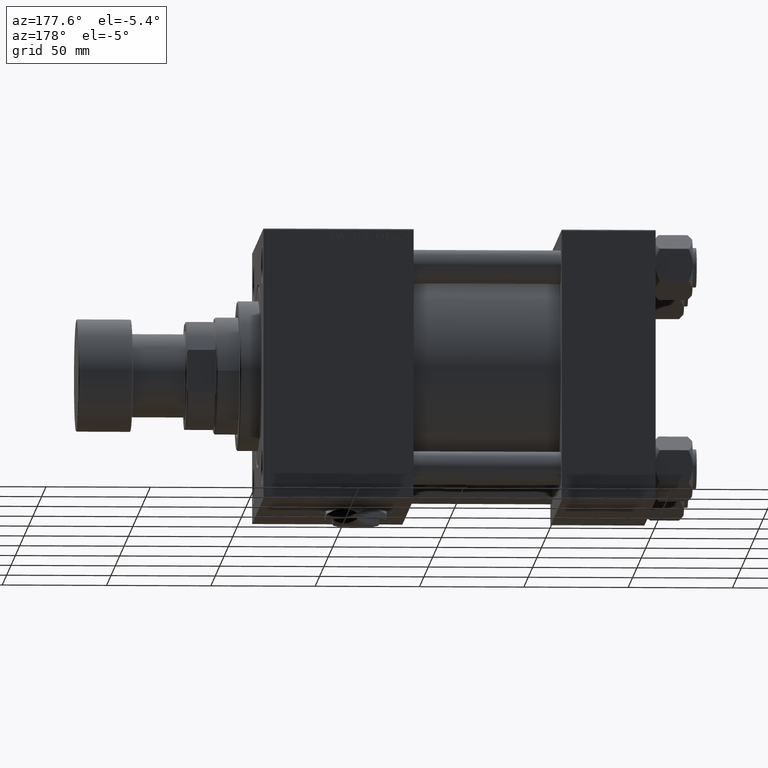
[diagram: clean part render]
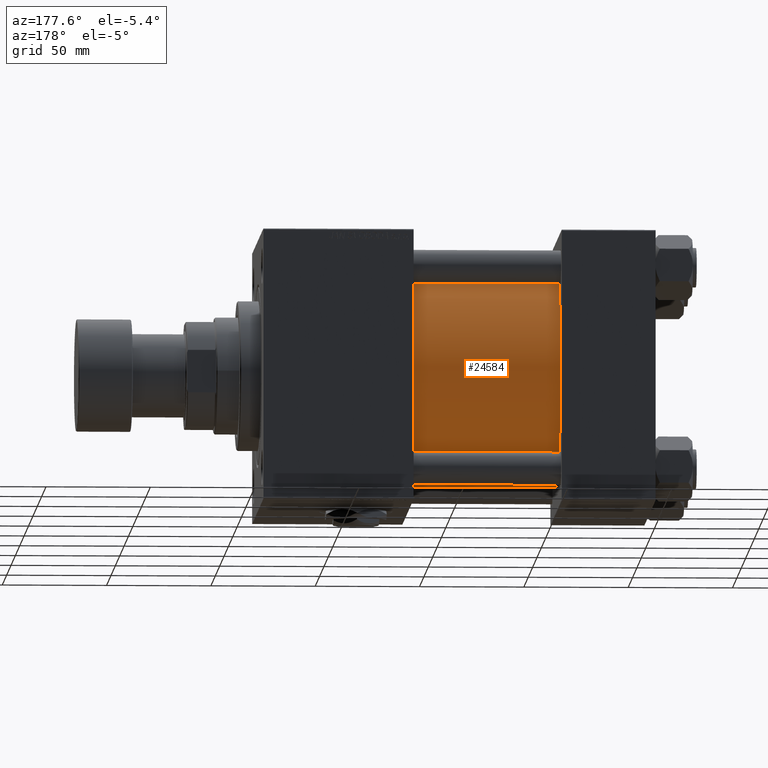
[diagram: same view with one face highlighted and labeled with its STEP entity id]
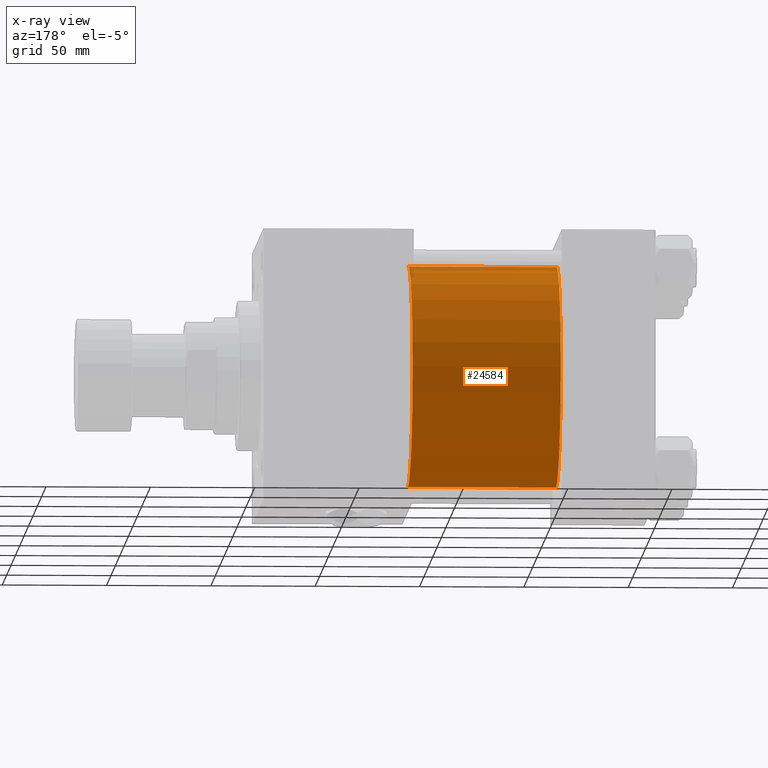
[diagram: x-ray of the same camera — body ghosted, the highlighted face saturated]
A machine part, auxiliary view. The second image highlights one B-rep face of the part: STEP entity #24584.
The next image is the same camera in x-ray: the body ghosted, the highlighted face saturated — about 5% of this face is hidden behind the body in this view.
In plain terms, the highlighted cylindrical surface (partial cylindrical patch) has radius 53 mm, axis along (-1, -0, -0).
Its self-contained STEP definition (entity closure, byte-faithful):
#931 = CARTESIAN_POINT ( 'NONE',  ( 45.00000000000000000, -2.602085213965210642E-15, 0.000000000000000000 ) ) ;
#1716 = LINE ( 'NONE', #47331, #47533 ) ;
#4227 = DIRECTION ( 'NONE',  ( -1.000000000000000000, -0.000000000000000000, -0.000000000000000000 ) ) ;
#5810 = CARTESIAN_POINT ( 'NONE',  ( 115.9999999999999858, -2.602085213965210642E-15, 53.00000000000000711 ) ) ;
#7039 = CARTESIAN_POINT ( 'NONE',  ( 115.9999999999999858, 3.888542821515762466E-15, -53.00000000000000711 ) ) ;
#7127 = CIRCLE ( 'NONE', #19128, 53.00000000000000711 ) ;
#8948 = CARTESIAN_POINT ( 'NONE',  ( 45.00000000000000000, -2.602085213965210642E-15, 53.00000000000000711 ) ) ;
#10213 = EDGE_CURVE ( 'NONE', #38243, #39814, #1716, .T. ) ;
#11171 = ORIENTED_EDGE ( 'NONE', *, *, #32789, .F. ) ;
#11657 = CYLINDRICAL_SURFACE ( 'NONE', #27392, 53.00000000000000711 ) ;
#17170 = EDGE_LOOP ( 'NONE', ( #11171, #33419, #18361, #51440 ) ) ;
#18361 = ORIENTED_EDGE ( 'NONE', *, *, #34617, .T. ) ;
#19128 = AXIS2_PLACEMENT_3D ( 'NONE', #33093, #41901, #21001 ) ;
#20906 = CIRCLE ( 'NONE', #41427, 53.00000000000000711 ) ;
#21001 = DIRECTION ( 'NONE',  ( 0.000000000000000000, 0.000000000000000000, -1.000000000000000000 ) ) ;
#21956 = VECTOR ( 'NONE', #4227, 1000.000000000000000 ) ;
#22570 = VERTEX_POINT ( 'NONE', #5810 ) ;
#24584 = ADVANCED_FACE ( 'NONE', ( #48408 ), #11657, .T. ) ;
#24900 = CARTESIAN_POINT ( 'NONE',  ( 115.9999999999999858, -2.602085213965210642E-15, 53.00000000000000711 ) ) ;
#26913 = VERTEX_POINT ( 'NONE', #8948 ) ;
#27392 = AXIS2_PLACEMENT_3D ( 'NONE', #28021, #37135, #48952 ) ;
#28021 = CARTESIAN_POINT ( 'NONE',  ( 115.9999999999999858, -2.602085213965210642E-15, 0.000000000000000000 ) ) ;
#29667 = DIRECTION ( 'NONE',  ( 1.000000000000000000, -0.000000000000000000, 0.000000000000000000 ) ) ;
#32789 = EDGE_CURVE ( 'NONE', #38243, #22570, #7127, .T. ) ;
#33093 = CARTESIAN_POINT ( 'NONE',  ( 115.9999999999999858, -2.602085213965210642E-15, 0.000000000000000000 ) ) ;
#33419 = ORIENTED_EDGE ( 'NONE', *, *, #10213, .T. ) ;
#34617 = EDGE_CURVE ( 'NONE', #39814, #26913, #20906, .T. ) ;
#35006 = DIRECTION ( 'NONE',  ( -1.000000000000000000, -0.000000000000000000, -0.000000000000000000 ) ) ;
#37135 = DIRECTION ( 'NONE',  ( -1.000000000000000000, -0.000000000000000000, -0.000000000000000000 ) ) ;
#38243 = VERTEX_POINT ( 'NONE', #7039 ) ;
#39814 = VERTEX_POINT ( 'NONE', #46107 ) ;
#40463 = LINE ( 'NONE', #24900, #21956 ) ;
#41427 = AXIS2_PLACEMENT_3D ( 'NONE', #931, #29667, #46008 ) ;
#41901 = DIRECTION ( 'NONE',  ( 1.000000000000000000, 0.000000000000000000, 0.000000000000000000 ) ) ;
#44371 = EDGE_CURVE ( 'NONE', #22570, #26913, #40463, .T. ) ;
#46008 = DIRECTION ( 'NONE',  ( 0.000000000000000000, 0.000000000000000000, 1.000000000000000000 ) ) ;
#46107 = CARTESIAN_POINT ( 'NONE',  ( 45.00000000000000000, 3.888542821515762466E-15, -53.00000000000000711 ) ) ;
#47331 = CARTESIAN_POINT ( 'NONE',  ( 115.9999999999999858, 3.888542821515762466E-15, -53.00000000000000711 ) ) ;
#47533 = VECTOR ( 'NONE', #35006, 1000.000000000000000 ) ;
#48408 = FACE_OUTER_BOUND ( 'NONE', #17170, .T. ) ;
#48952 = DIRECTION ( 'NONE',  ( 0.000000000000000000, 0.000000000000000000, 1.000000000000000000 ) ) ;
#51440 = ORIENTED_EDGE ( 'NONE', *, *, #44371, .F. ) ;